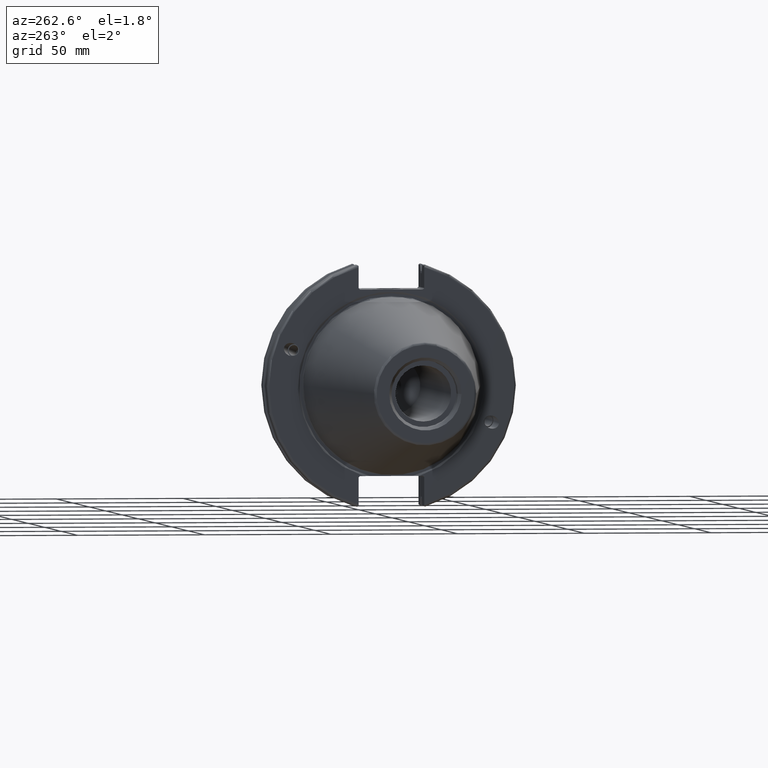
[diagram: clean part render]
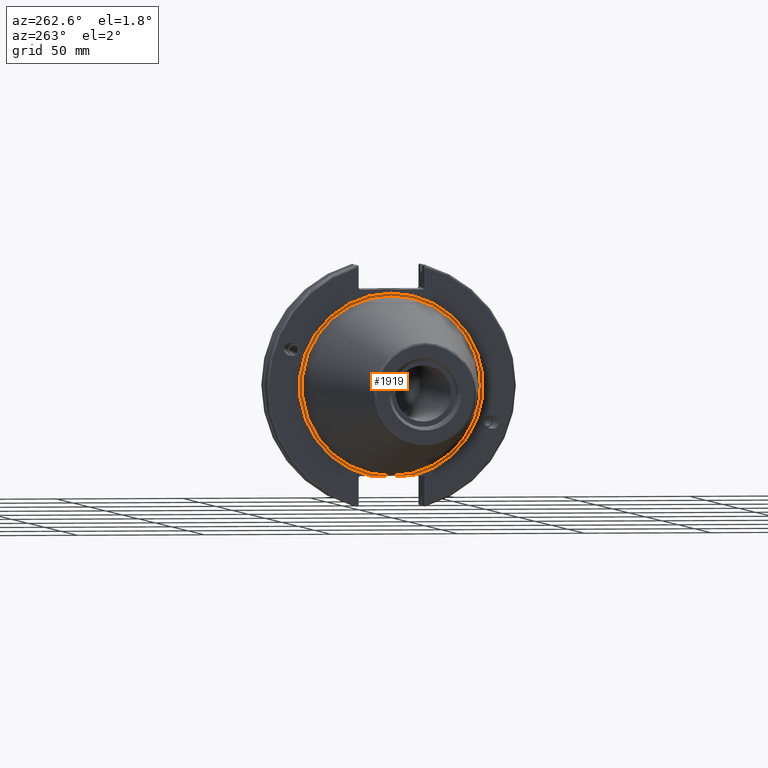
[diagram: same view with one face highlighted and labeled with its STEP entity id]
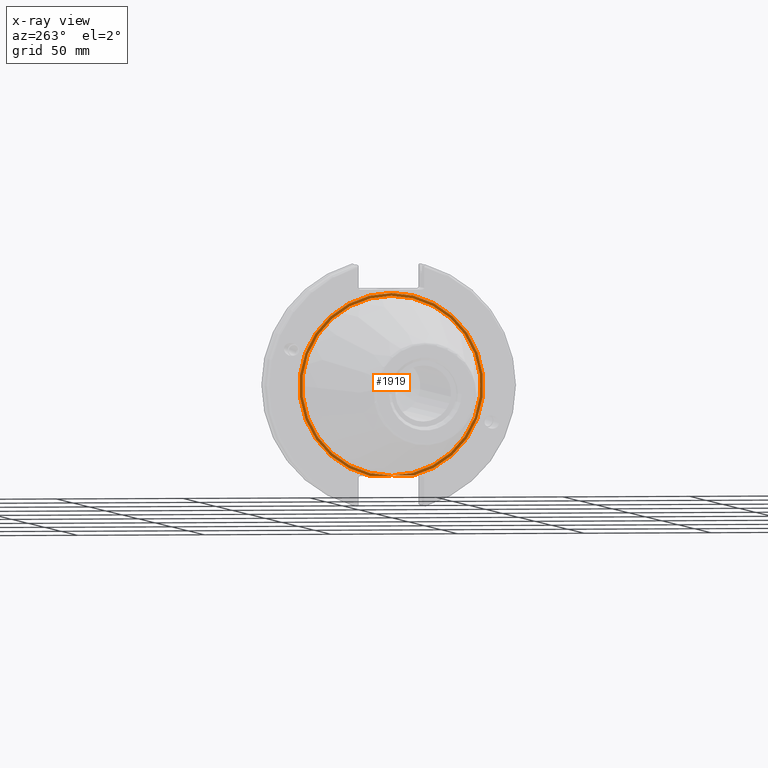
[diagram: x-ray of the same camera — body ghosted, the highlighted face saturated]
A machine part, auxiliary view. The second image highlights one B-rep face of the part: STEP entity #1919.
The next image is the same camera in x-ray: the body ghosted, the highlighted face saturated — about 0% of this face is hidden behind the body in this view.
In plain terms, the highlighted planar face has unit normal (-1, 0, 0).
Its self-contained STEP definition (entity closure, byte-faithful):
#69=PLANE('',#2171);
#107=FACE_BOUND('',#393,.T.);
#270=FACE_OUTER_BOUND('',#392,.T.);
#392=EDGE_LOOP('',(#1761,#1762));
#393=EDGE_LOOP('',(#1763));
#486=LINE('',#3737,#589);
#589=VECTOR('',#2644,10.);
#728=CIRCLE('',#2170,35.225);
#729=CIRCLE('',#2172,36.3071796769724);
#911=VERTEX_POINT('',#3732);
#912=VERTEX_POINT('',#3736);
#925=VERTEX_POINT('',#3808);
#1177=EDGE_CURVE('',#912,#911,#486,.T.);
#1209=EDGE_CURVE('',#925,#925,#728,.T.);
#1210=EDGE_CURVE('',#912,#911,#729,.T.);
#1761=ORIENTED_EDGE('',*,*,#1177,.T.);
#1762=ORIENTED_EDGE('',*,*,#1210,.F.);
#1763=ORIENTED_EDGE('',*,*,#1209,.T.);
#1919=ADVANCED_FACE('',(#270,#107),#69,.T.);
#2170=AXIS2_PLACEMENT_3D('',#3810,#2728,#2729);
#2171=AXIS2_PLACEMENT_3D('',#3811,#2730,#2731);
#2172=AXIS2_PLACEMENT_3D('',#3812,#2732,#2733);
#2644=DIRECTION('',(0.,-1.,0.));
#2728=DIRECTION('center_axis',(1.,0.,0.));
#2729=DIRECTION('ref_axis',(0.,0.,-1.));
#2730=DIRECTION('center_axis',(-1.,0.,0.));
#2731=DIRECTION('ref_axis',(0.,0.,1.));
#2732=DIRECTION('center_axis',(1.,0.,0.));
#2733=DIRECTION('ref_axis',(0.,0.,-1.));
#3732=CARTESIAN_POINT('',(1.9,-8.46744708256043,-35.306));
#3736=CARTESIAN_POINT('',(1.9,8.46744708256043,-35.306));
#3737=CARTESIAN_POINT('',(1.9,18.1535898384862,-35.306));
#3808=CARTESIAN_POINT('',(1.9,-4.31381834999655E-15,35.225));
#3810=CARTESIAN_POINT('Origin',(1.9,0.,0.));
#3811=CARTESIAN_POINT('Origin',(1.9,36.3071796769724,0.));
#3812=CARTESIAN_POINT('Origin',(1.9,0.,0.));